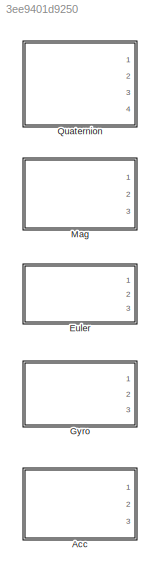
MODEL slx_3ee9401d9250
KIND model
CONFIG AbsTol = auto
CONFIG FixedStep = auto
CONFIG MaxStep = auto
CONFIG MinStep = auto
CONFIG RelTol = 1e-3
CONFIG SampleTimeConstraint = Unconstrained
CONFIG Solver = VariableStepAuto
CONFIG SolverMode = Auto
CONFIG SolverName = VariableStepAuto
CONFIG StartTime = 0.0
CONFIG StopTime = 10.0
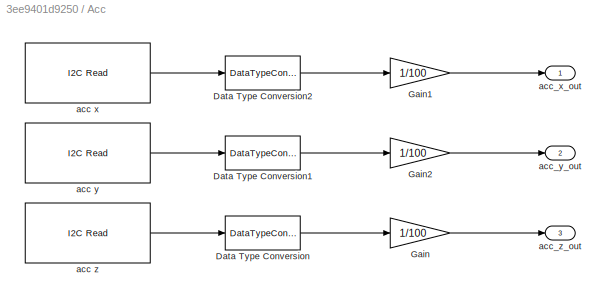
BLOCK [SubSystem] Acc
  Ports = [0, 3]
  RequestExecContextInheritance = off
  Variant = off
BLOCK [DataTypeConversion] Acc/Data Type Conversion
  OutDataTypeStr = double
  RndMeth = Floor
  SaturateOnIntegerOverflow = off
BLOCK [DataTypeConversion] Acc/Data Type Conversion1
  OutDataTypeStr = double
  RndMeth = Floor
  SaturateOnIntegerOverflow = off
BLOCK [DataTypeConversion] Acc/Data Type Conversion2
  OutDataTypeStr = double
  RndMeth = Floor
  SaturateOnIntegerOverflow = off
BLOCK [Gain] Acc/Gain
  Gain = 1/100
  OutDataTypeStr = Inherit: Inherit via internal rule
  ParamDataTypeStr = Inherit: Inherit via internal rule
  SaturateOnIntegerOverflow = off
BLOCK [Gain] Acc/Gain1
  Gain = 1/100
  OutDataTypeStr = Inherit: Inherit via internal rule
  ParamDataTypeStr = Inherit: Inherit via internal rule
  SaturateOnIntegerOverflow = off
BLOCK [Gain] Acc/Gain2
  Gain = 1/100
  OutDataTypeStr = Inherit: Inherit via internal rule
  ParamDataTypeStr = Inherit: Inherit via internal rule
  SaturateOnIntegerOverflow = off
BLOCK [Reference] Acc/acc x  REF=arduinolib/I2C Read
  Ports = [0, 1]
  SourceBlock = arduinolib/I2C Read
  SourceType = I2C Read
BLOCK [Reference] Acc/acc y  REF=arduinolib/I2C Read
  Ports = [0, 1]
  SourceBlock = arduinolib/I2C Read
  SourceType = I2C Read
BLOCK [Reference] Acc/acc z  REF=arduinolib/I2C Read
  Ports = [0, 1]
  SourceBlock = arduinolib/I2C Read
  SourceType = I2C Read
BLOCK [Outport] Acc/acc_x_out
  IconDisplay = Port number
BLOCK [Outport] Acc/acc_y_out
  IconDisplay = Port number
  Port = 2
BLOCK [Outport] Acc/acc_z_out
  IconDisplay = Port number
  Port = 3
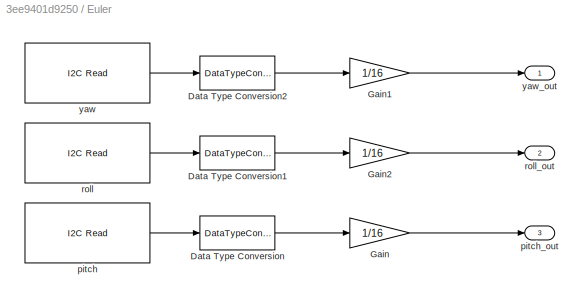
BLOCK [SubSystem] Euler
  Ports = [0, 3]
  RequestExecContextInheritance = off
  Variant = off
BLOCK [DataTypeConversion] Euler/Data Type Conversion
  OutDataTypeStr = double
  RndMeth = Floor
  SaturateOnIntegerOverflow = off
BLOCK [DataTypeConversion] Euler/Data Type Conversion1
  OutDataTypeStr = double
  RndMeth = Floor
  SaturateOnIntegerOverflow = off
BLOCK [DataTypeConversion] Euler/Data Type Conversion2
  OutDataTypeStr = double
  RndMeth = Floor
  SaturateOnIntegerOverflow = off
BLOCK [Gain] Euler/Gain
  Gain = 1/16
  OutDataTypeStr = Inherit: Inherit via internal rule
  ParamDataTypeStr = Inherit: Inherit via internal rule
  SaturateOnIntegerOverflow = off
BLOCK [Gain] Euler/Gain1
  Gain = 1/16
  OutDataTypeStr = Inherit: Inherit via internal rule
  ParamDataTypeStr = Inherit: Inherit via internal rule
  SaturateOnIntegerOverflow = off
BLOCK [Gain] Euler/Gain2
  Gain = 1/16
  OutDataTypeStr = Inherit: Inherit via internal rule
  ParamDataTypeStr = Inherit: Inherit via internal rule
  SaturateOnIntegerOverflow = off
BLOCK [Reference] Euler/pitch  REF=arduinolib/I2C Read
  Ports = [0, 1]
  SourceBlock = arduinolib/I2C Read
  SourceType = I2C Read
BLOCK [Outport] Euler/pitch_out
  IconDisplay = Port number
  Port = 3
BLOCK [Reference] Euler/roll  REF=arduinolib/I2C Read
  Ports = [0, 1]
  SourceBlock = arduinolib/I2C Read
  SourceType = I2C Read
BLOCK [Outport] Euler/roll_out
  IconDisplay = Port number
  Port = 2
BLOCK [Reference] Euler/yaw  REF=arduinolib/I2C Read
  Ports = [0, 1]
  SourceBlock = arduinolib/I2C Read
  SourceType = I2C Read
BLOCK [Outport] Euler/yaw_out
  IconDisplay = Port number
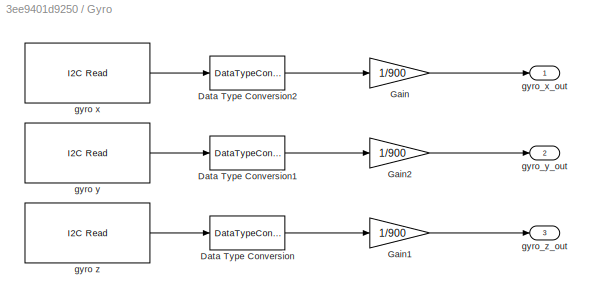
BLOCK [SubSystem] Gyro
  Ports = [0, 3]
  RequestExecContextInheritance = off
  Variant = off
BLOCK [DataTypeConversion] Gyro/Data Type Conversion
  OutDataTypeStr = double
  RndMeth = Floor
  SaturateOnIntegerOverflow = off
BLOCK [DataTypeConversion] Gyro/Data Type Conversion1
  OutDataTypeStr = double
  RndMeth = Floor
  SaturateOnIntegerOverflow = off
BLOCK [DataTypeConversion] Gyro/Data Type Conversion2
  OutDataTypeStr = double
  RndMeth = Floor
  SaturateOnIntegerOverflow = off
BLOCK [Gain] Gyro/Gain
  Gain = 1/900
  OutDataTypeStr = Inherit: Inherit via internal rule
  ParamDataTypeStr = Inherit: Inherit via internal rule
  SaturateOnIntegerOverflow = off
BLOCK [Gain] Gyro/Gain1
  Gain = 1/900
  OutDataTypeStr = Inherit: Inherit via internal rule
  ParamDataTypeStr = Inherit: Inherit via internal rule
  SaturateOnIntegerOverflow = off
BLOCK [Gain] Gyro/Gain2
  Gain = 1/900
  OutDataTypeStr = Inherit: Inherit via internal rule
  ParamDataTypeStr = Inherit: Inherit via internal rule
  SaturateOnIntegerOverflow = off
BLOCK [Reference] Gyro/gyro x  REF=arduinolib/I2C Read
  Ports = [0, 1]
  SourceBlock = arduinolib/I2C Read
  SourceType = I2C Read
BLOCK [Reference] Gyro/gyro y  REF=arduinolib/I2C Read
  Ports = [0, 1]
  SourceBlock = arduinolib/I2C Read
  SourceType = I2C Read
BLOCK [Reference] Gyro/gyro z  REF=arduinolib/I2C Read
  Ports = [0, 1]
  SourceBlock = arduinolib/I2C Read
  SourceType = I2C Read
BLOCK [Outport] Gyro/gyro_x_out
  IconDisplay = Port number
BLOCK [Outport] Gyro/gyro_y_out
  IconDisplay = Port number
  Port = 2
BLOCK [Outport] Gyro/gyro_z_out
  IconDisplay = Port number
  Port = 3
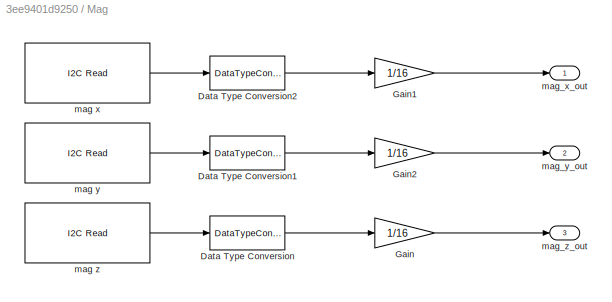
BLOCK [SubSystem] Mag
  Ports = [0, 3]
  RequestExecContextInheritance = off
  Variant = off
BLOCK [DataTypeConversion] Mag/Data Type Conversion
  OutDataTypeStr = double
  RndMeth = Floor
  SaturateOnIntegerOverflow = off
BLOCK [DataTypeConversion] Mag/Data Type Conversion1
  OutDataTypeStr = double
  RndMeth = Floor
  SaturateOnIntegerOverflow = off
BLOCK [DataTypeConversion] Mag/Data Type Conversion2
  OutDataTypeStr = double
  RndMeth = Floor
  SaturateOnIntegerOverflow = off
BLOCK [Gain] Mag/Gain
  Gain = 1/16
  OutDataTypeStr = Inherit: Inherit via internal rule
  ParamDataTypeStr = Inherit: Inherit via internal rule
  SaturateOnIntegerOverflow = off
BLOCK [Gain] Mag/Gain1
  Gain = 1/16
  OutDataTypeStr = Inherit: Inherit via internal rule
  ParamDataTypeStr = Inherit: Inherit via internal rule
  SaturateOnIntegerOverflow = off
BLOCK [Gain] Mag/Gain2
  Gain = 1/16
  OutDataTypeStr = Inherit: Inherit via internal rule
  ParamDataTypeStr = Inherit: Inherit via internal rule
  SaturateOnIntegerOverflow = off
BLOCK [Reference] Mag/mag x  REF=arduinolib/I2C Read
  Ports = [0, 1]
  SourceBlock = arduinolib/I2C Read
  SourceType = I2C Read
BLOCK [Reference] Mag/mag y  REF=arduinolib/I2C Read
  Ports = [0, 1]
  SourceBlock = arduinolib/I2C Read
  SourceType = I2C Read
BLOCK [Reference] Mag/mag z  REF=arduinolib/I2C Read
  Ports = [0, 1]
  SourceBlock = arduinolib/I2C Read
  SourceType = I2C Read
BLOCK [Outport] Mag/mag_x_out
  IconDisplay = Port number
BLOCK [Outport] Mag/mag_y_out
  IconDisplay = Port number
  Port = 2
BLOCK [Outport] Mag/mag_z_out
  IconDisplay = Port number
  Port = 3
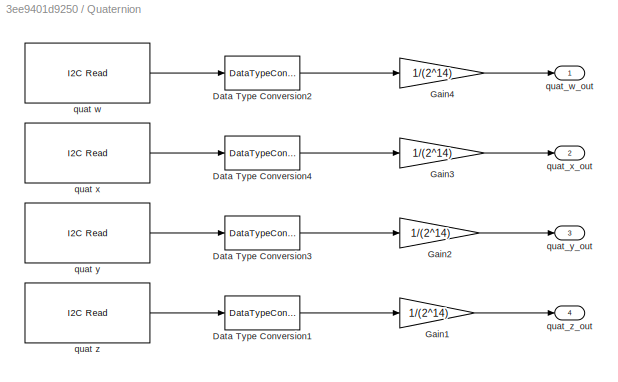
BLOCK [SubSystem] Quaternion
  Ports = [0, 4]
  RequestExecContextInheritance = off
  Variant = off
BLOCK [DataTypeConversion] Quaternion/Data Type Conversion1
  OutDataTypeStr = double
  RndMeth = Floor
  SaturateOnIntegerOverflow = off
BLOCK [DataTypeConversion] Quaternion/Data Type Conversion2
  OutDataTypeStr = double
  RndMeth = Floor
  SaturateOnIntegerOverflow = off
BLOCK [DataTypeConversion] Quaternion/Data Type Conversion3
  OutDataTypeStr = double
  RndMeth = Floor
  SaturateOnIntegerOverflow = off
BLOCK [DataTypeConversion] Quaternion/Data Type Conversion4
  OutDataTypeStr = double
  RndMeth = Floor
  SaturateOnIntegerOverflow = off
BLOCK [Gain] Quaternion/Gain1
  Gain = 1/(2^14)
  OutDataTypeStr = Inherit: Inherit via internal rule
  ParamDataTypeStr = Inherit: Inherit via internal rule
  SaturateOnIntegerOverflow = off
BLOCK [Gain] Quaternion/Gain2
  Gain = 1/(2^14)
  OutDataTypeStr = Inherit: Inherit via internal rule
  ParamDataTypeStr = Inherit: Inherit via internal rule
  SaturateOnIntegerOverflow = off
BLOCK [Gain] Quaternion/Gain3
  Gain = 1/(2^14)
  OutDataTypeStr = Inherit: Inherit via internal rule
  ParamDataTypeStr = Inherit: Inherit via internal rule
  SaturateOnIntegerOverflow = off
BLOCK [Gain] Quaternion/Gain4
  Gain = 1/(2^14)
  OutDataTypeStr = Inherit: Inherit via internal rule
  ParamDataTypeStr = Inherit: Inherit via internal rule
  SaturateOnIntegerOverflow = off
BLOCK [Reference] Quaternion/quat w  REF=arduinolib/I2C Read
  Ports = [0, 1]
  SourceBlock = arduinolib/I2C Read
  SourceType = I2C Read
BLOCK [Reference] Quaternion/quat x  REF=arduinolib/I2C Read
  Ports = [0, 1]
  SourceBlock = arduinolib/I2C Read
  SourceType = I2C Read
BLOCK [Reference] Quaternion/quat y  REF=arduinolib/I2C Read
  Ports = [0, 1]
  SourceBlock = arduinolib/I2C Read
  SourceType = I2C Read
BLOCK [Reference] Quaternion/quat z  REF=arduinolib/I2C Read
  Ports = [0, 1]
  SourceBlock = arduinolib/I2C Read
  SourceType = I2C Read
BLOCK [Outport] Quaternion/quat_w_out
  IconDisplay = Port number
BLOCK [Outport] Quaternion/quat_x_out
  IconDisplay = Port number
  Port = 2
BLOCK [Outport] Quaternion/quat_y_out
  IconDisplay = Port number
  Port = 3
BLOCK [Outport] Quaternion/quat_z_out
  IconDisplay = Port number
  Port = 4
LINE Acc/Data Type Conversion1:1 -> Acc/Gain2:1
LINE Acc/Data Type Conversion2:1 -> Acc/Gain1:1
LINE Acc/Data Type Conversion:1 -> Acc/Gain:1
LINE Acc/Gain1:1 -> Acc/acc_x_out:1
LINE Acc/Gain2:1 -> Acc/acc_y_out:1
LINE Acc/Gain:1 -> Acc/acc_z_out:1
LINE Acc/acc x:1 -> Acc/Data Type Conversion2:1
LINE Acc/acc y:1 -> Acc/Data Type Conversion1:1
LINE Acc/acc z:1 -> Acc/Data Type Conversion:1
LINE Euler/Data Type Conversion1:1 -> Euler/Gain2:1
LINE Euler/Data Type Conversion2:1 -> Euler/Gain1:1
LINE Euler/Data Type Conversion:1 -> Euler/Gain:1
LINE Euler/Gain1:1 -> Euler/yaw_out:1
LINE Euler/Gain2:1 -> Euler/roll_out:1
LINE Euler/Gain:1 -> Euler/pitch_out:1
LINE Euler/pitch:1 -> Euler/Data Type Conversion:1
LINE Euler/roll:1 -> Euler/Data Type Conversion1:1
LINE Euler/yaw:1 -> Euler/Data Type Conversion2:1
LINE Gyro/Data Type Conversion1:1 -> Gyro/Gain2:1
LINE Gyro/Data Type Conversion2:1 -> Gyro/Gain:1
LINE Gyro/Data Type Conversion:1 -> Gyro/Gain1:1
LINE Gyro/Gain1:1 -> Gyro/gyro_z_out:1
LINE Gyro/Gain2:1 -> Gyro/gyro_y_out:1
LINE Gyro/Gain:1 -> Gyro/gyro_x_out:1
LINE Gyro/gyro x:1 -> Gyro/Data Type Conversion2:1
LINE Gyro/gyro y:1 -> Gyro/Data Type Conversion1:1
LINE Gyro/gyro z:1 -> Gyro/Data Type Conversion:1
LINE Mag/Data Type Conversion1:1 -> Mag/Gain2:1
LINE Mag/Data Type Conversion2:1 -> Mag/Gain1:1
LINE Mag/Data Type Conversion:1 -> Mag/Gain:1
LINE Mag/Gain1:1 -> Mag/mag_x_out:1
LINE Mag/Gain2:1 -> Mag/mag_y_out:1
LINE Mag/Gain:1 -> Mag/mag_z_out:1
LINE Mag/mag x:1 -> Mag/Data Type Conversion2:1
LINE Mag/mag y:1 -> Mag/Data Type Conversion1:1
LINE Mag/mag z:1 -> Mag/Data Type Conversion:1
LINE Quaternion/Data Type Conversion1:1 -> Quaternion/Gain1:1
LINE Quaternion/Data Type Conversion2:1 -> Quaternion/Gain4:1
LINE Quaternion/Data Type Conversion3:1 -> Quaternion/Gain2:1
LINE Quaternion/Data Type Conversion4:1 -> Quaternion/Gain3:1
LINE Quaternion/Gain1:1 -> Quaternion/quat_z_out:1
LINE Quaternion/Gain2:1 -> Quaternion/quat_y_out:1
LINE Quaternion/Gain3:1 -> Quaternion/quat_x_out:1
LINE Quaternion/Gain4:1 -> Quaternion/quat_w_out:1
LINE Quaternion/quat w:1 -> Quaternion/Data Type Conversion2:1
LINE Quaternion/quat x:1 -> Quaternion/Data Type Conversion4:1
LINE Quaternion/quat y:1 -> Quaternion/Data Type Conversion3:1
LINE Quaternion/quat z:1 -> Quaternion/Data Type Conversion1:1
